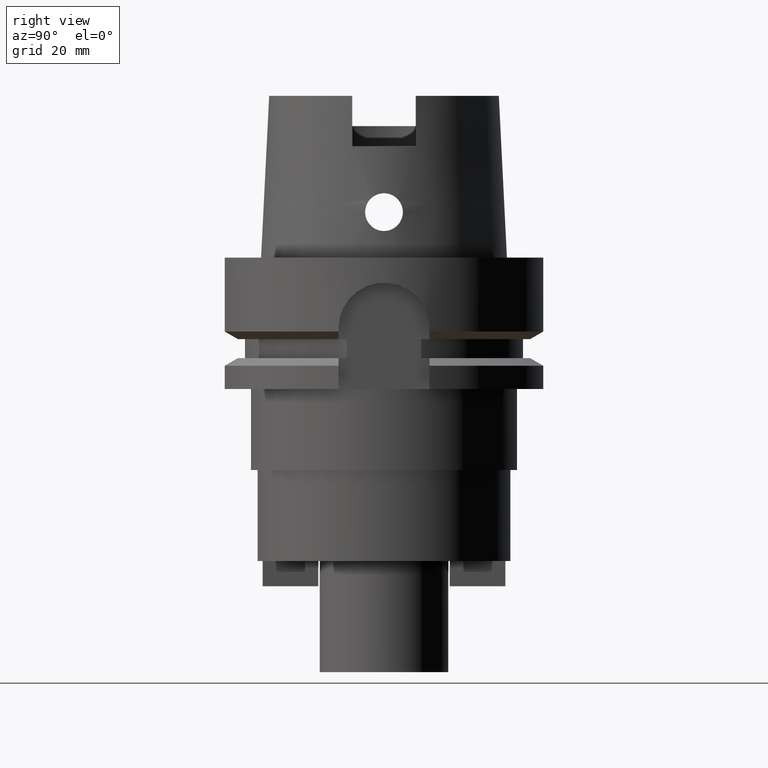
[diagram: clean part render]
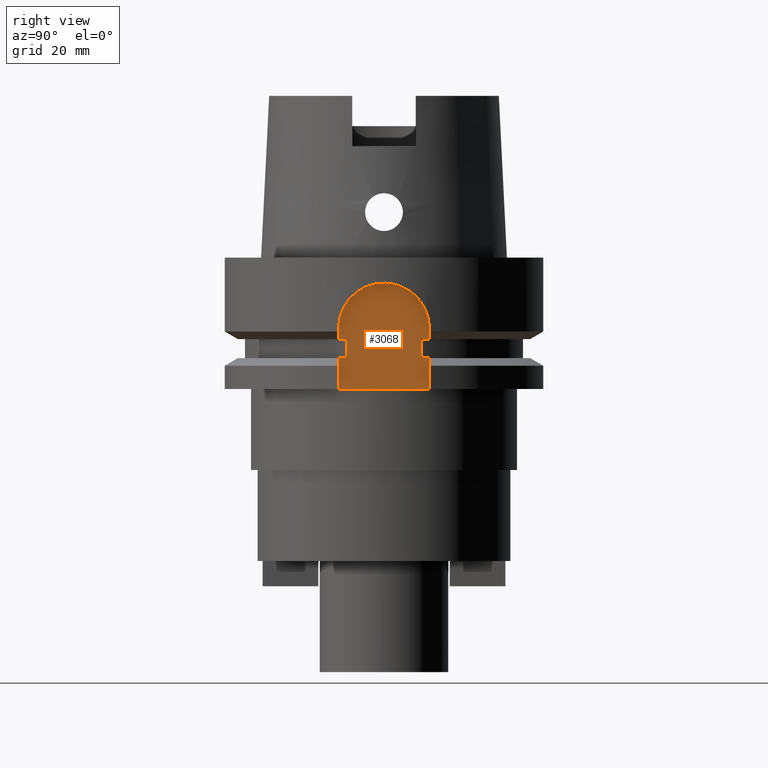
[diagram: same view with one face highlighted and labeled with its STEP entity id]
A machine part, right view. The second image highlights one B-rep face of the part: STEP entity #3068.
In plain terms, the highlighted planar face has unit normal (1, 0, 0).
Its self-contained STEP definition (entity closure, byte-faithful):
#484=DIRECTION('',(2.366280491871E-14,1.E0,0.E0));
#485=VECTOR('',#484,1.651530771650E0);
#486=CARTESIAN_POINT('',(2.65E1,7.348469228350E0,-1.6125E1));
#487=LINE('',#486,#485);
#636=DIRECTION('',(-2.366280491871E-14,1.E0,0.E0));
#637=VECTOR('',#636,1.651530771650E0);
#638=CARTESIAN_POINT('',(2.65E1,-9.E0,-1.6125E1));
#639=LINE('',#638,#637);
#734=DIRECTION('',(0.E0,1.E0,0.E0));
#735=VECTOR('',#734,1.8E1);
#736=CARTESIAN_POINT('',(2.65E1,-9.E0,-2.6E1));
#737=LINE('',#736,#735);
#818=DIRECTION('',(0.E0,0.E0,1.E0));
#819=VECTOR('',#818,6.125E0);
#820=CARTESIAN_POINT('',(2.65E1,-9.E0,-2.6E1));
#821=LINE('',#820,#819);
#825=DIRECTION('',(-2.366280491871E-14,1.E0,0.E0));
#826=VECTOR('',#825,1.651530771650E0);
#827=CARTESIAN_POINT('',(2.65E1,-9.E0,-1.9875E1));
#828=LINE('',#827,#826);
#832=DIRECTION('',(0.E0,0.E0,1.E0));
#833=VECTOR('',#832,2.125E0);
#834=CARTESIAN_POINT('',(2.65E1,-9.E0,-1.6125E1));
#835=LINE('',#834,#833);
#839=CARTESIAN_POINT('',(2.65E1,0.E0,-1.4E1));
#840=DIRECTION('',(-1.E0,0.E0,0.E0));
#841=DIRECTION('',(0.E0,-1.E0,0.E0));
#842=AXIS2_PLACEMENT_3D('',#839,#840,#841);
#847=CARTESIAN_POINT('',(2.65E1,0.E0,-1.4E1));
#848=DIRECTION('',(-1.E0,0.E0,0.E0));
#849=DIRECTION('',(0.E0,0.E0,1.E0));
#850=AXIS2_PLACEMENT_3D('',#847,#848,#849);
#855=DIRECTION('',(0.E0,0.E0,-1.E0));
#856=VECTOR('',#855,2.125E0);
#857=CARTESIAN_POINT('',(2.65E1,9.E0,-1.4E1));
#858=LINE('',#857,#856);
#862=DIRECTION('',(2.366280491871E-14,1.E0,0.E0));
#863=VECTOR('',#862,1.651530771650E0);
#864=CARTESIAN_POINT('',(2.65E1,7.348469228350E0,-1.9875E1));
#865=LINE('',#864,#863);
#869=DIRECTION('',(0.E0,0.E0,-1.E0));
#870=VECTOR('',#869,6.125E0);
#871=CARTESIAN_POINT('',(2.65E1,9.E0,-1.9875E1));
#872=LINE('',#871,#870);
#984=DIRECTION('',(0.E0,0.E0,-1.E0));
#985=VECTOR('',#984,3.75E0);
#986=CARTESIAN_POINT('',(2.65E1,-7.348469228350E0,-1.6125E1));
#987=LINE('',#986,#985);
#1140=DIRECTION('',(0.E0,0.E0,1.E0));
#1141=VECTOR('',#1140,3.75E0);
#1142=CARTESIAN_POINT('',(2.65E1,7.348469228350E0,-1.9875E1));
#1143=LINE('',#1142,#1141);
#2356=CARTESIAN_POINT('',(2.65E1,-9.E0,-2.6E1));
#2357=VERTEX_POINT('',#2356);
#2358=CARTESIAN_POINT('',(2.65E1,9.E0,-2.6E1));
#2359=VERTEX_POINT('',#2358);
#2437=CARTESIAN_POINT('',(2.65E1,-7.348469228350E0,-1.9875E1));
#2439=VERTEX_POINT('',#2437);
#2440=CARTESIAN_POINT('',(2.65E1,-9.E0,-1.9875E1));
#2441=VERTEX_POINT('',#2440);
#2442=CARTESIAN_POINT('',(2.65E1,9.E0,-1.9875E1));
#2443=VERTEX_POINT('',#2442);
#2444=CARTESIAN_POINT('',(2.65E1,7.348469228350E0,-1.9875E1));
#2445=VERTEX_POINT('',#2444);
#2448=CARTESIAN_POINT('',(2.65E1,7.348469228350E0,-1.6125E1));
#2449=VERTEX_POINT('',#2448);
#2454=CARTESIAN_POINT('',(2.65E1,-7.348469228350E0,-1.6125E1));
#2455=VERTEX_POINT('',#2454);
#2456=CARTESIAN_POINT('',(2.65E1,-9.E0,-1.6125E1));
#2457=VERTEX_POINT('',#2456);
#2458=CARTESIAN_POINT('',(2.65E1,-9.E0,-1.4E1));
#2459=VERTEX_POINT('',#2458);
#2460=CARTESIAN_POINT('',(2.65E1,0.E0,-5.E0));
#2461=CARTESIAN_POINT('',(2.65E1,9.E0,-1.4E1));
#2462=VERTEX_POINT('',#2460);
#2463=VERTEX_POINT('',#2461);
#2464=CARTESIAN_POINT('',(2.65E1,9.E0,-1.6125E1));
#2465=VERTEX_POINT('',#2464);
#3039=CARTESIAN_POINT('',(2.65E1,0.E0,0.E0));
#3040=DIRECTION('',(1.E0,0.E0,0.E0));
#3041=DIRECTION('',(0.E0,0.E0,1.E0));
#3042=AXIS2_PLACEMENT_3D('',#3039,#3040,#3041);
#3043=PLANE('',#3042);
#3044=ORIENTED_EDGE('',*,*,#2972,.F.);
#3046=ORIENTED_EDGE('',*,*,#3045,.T.);
#3048=ORIENTED_EDGE('',*,*,#3047,.T.);
#3050=ORIENTED_EDGE('',*,*,#3049,.F.);
#3051=ORIENTED_EDGE('',*,*,#2913,.F.);
#3053=ORIENTED_EDGE('',*,*,#3052,.T.);
#3055=ORIENTED_EDGE('',*,*,#3054,.T.);
#3057=ORIENTED_EDGE('',*,*,#3056,.T.);
#3059=ORIENTED_EDGE('',*,*,#3058,.T.);
#3060=ORIENTED_EDGE('',*,*,#2802,.F.);
#3062=ORIENTED_EDGE('',*,*,#3061,.F.);
#3064=ORIENTED_EDGE('',*,*,#3063,.T.);
#3065=ORIENTED_EDGE('',*,*,#3029,.T.);
#3066=EDGE_LOOP('',(#3044,#3046,#3048,#3050,#3051,#3053,#3055,#3057,#3059,#3060,
#3062,#3064,#3065));
#3067=FACE_OUTER_BOUND('',#3066,.F.);
#843=CIRCLE('',#842,9.E0);
#851=CIRCLE('',#850,9.E0);
#2802=EDGE_CURVE('',#2449,#2465,#487,.T.);
#2913=EDGE_CURVE('',#2457,#2455,#639,.T.);
#2972=EDGE_CURVE('',#2357,#2359,#737,.T.);
#3029=EDGE_CURVE('',#2443,#2359,#872,.T.);
#3045=EDGE_CURVE('',#2357,#2441,#821,.T.);
#3047=EDGE_CURVE('',#2441,#2439,#828,.T.);
#3049=EDGE_CURVE('',#2455,#2439,#987,.T.);
#3052=EDGE_CURVE('',#2457,#2459,#835,.T.);
#3054=EDGE_CURVE('',#2459,#2462,#843,.T.);
#3056=EDGE_CURVE('',#2462,#2463,#851,.T.);
#3058=EDGE_CURVE('',#2463,#2465,#858,.T.);
#3061=EDGE_CURVE('',#2445,#2449,#1143,.T.);
#3063=EDGE_CURVE('',#2445,#2443,#865,.T.);
#3068=ADVANCED_FACE('',(#3067),#3043,.T.);